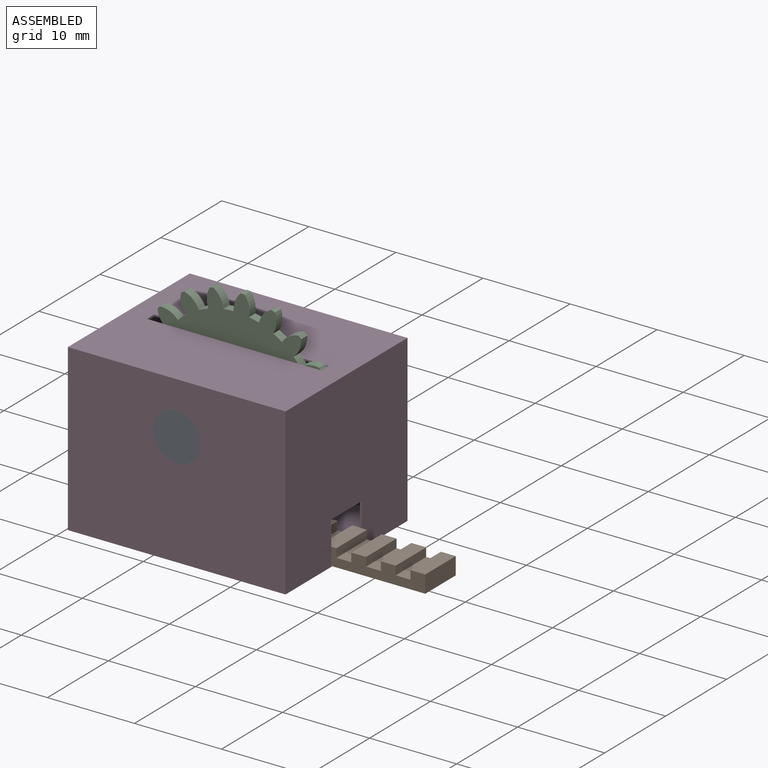
[diagram: assembled view]
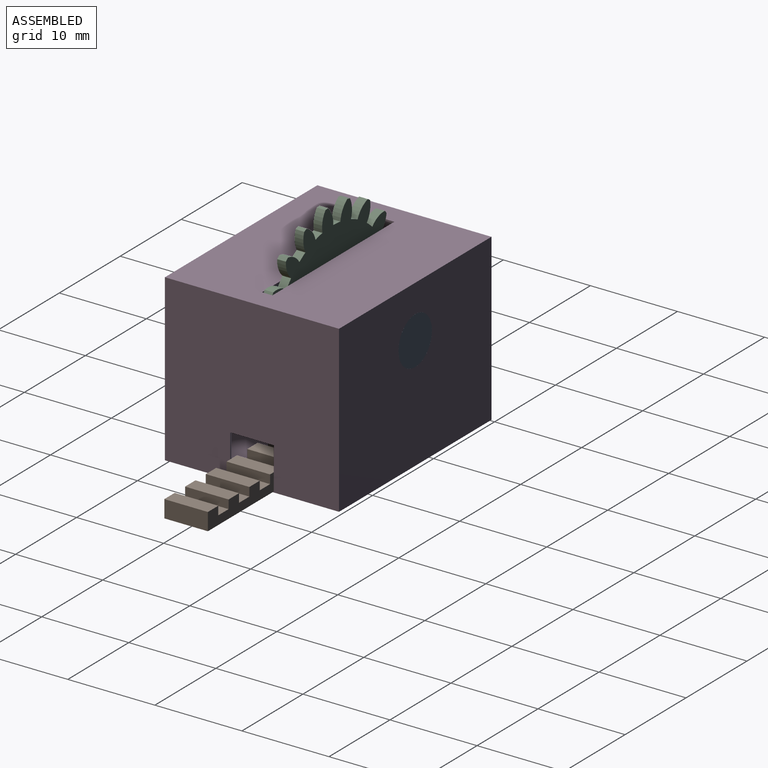
[diagram: assembled view, second angle]
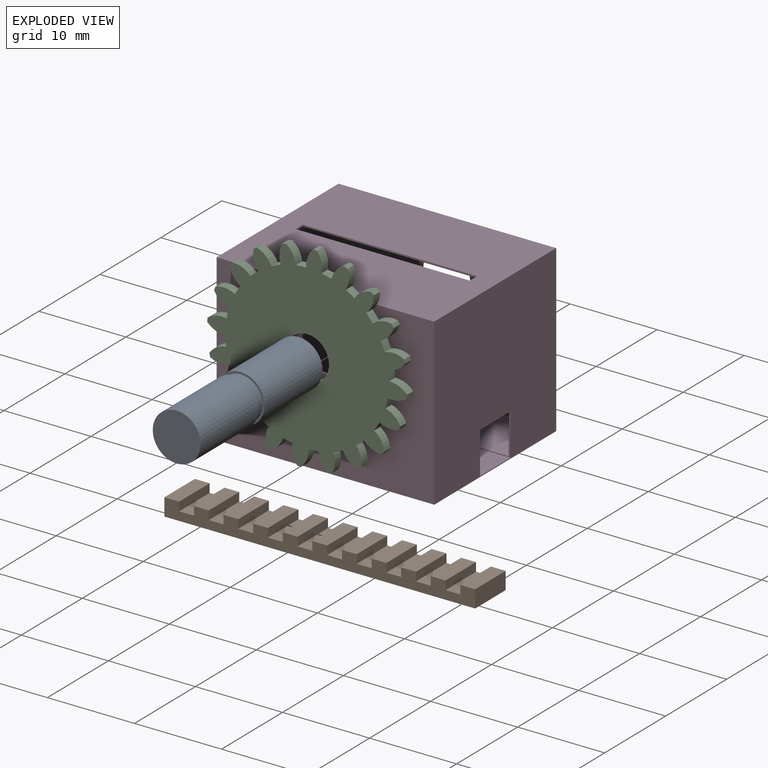
[diagram: exploded view]
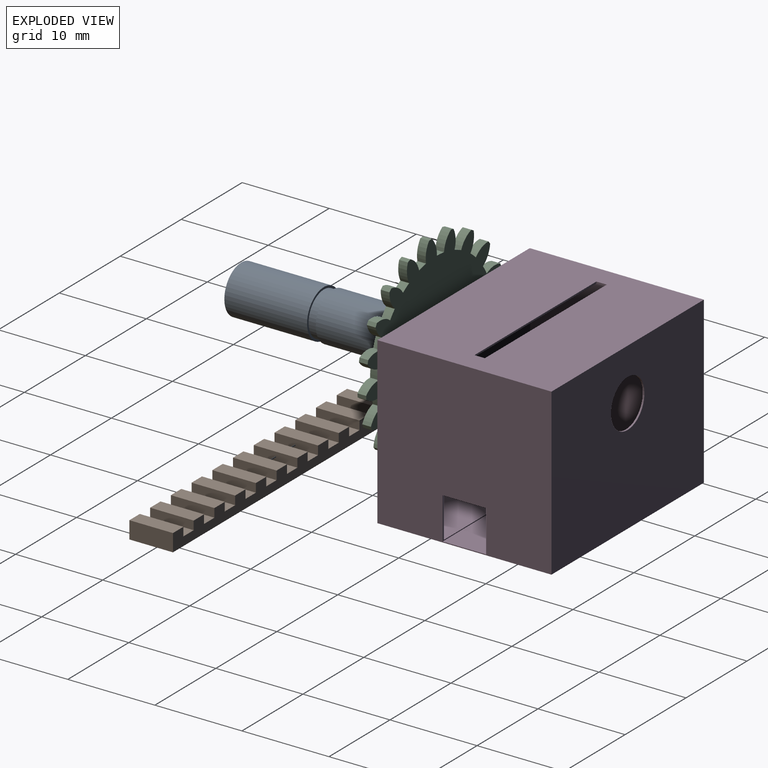
[diagram: exploded view, second angle]
ASSEMBLY  parts=4 mates=3
PART A: 7 faces, bbox 5.5x20x5.5 mm
  f0: cylinder r=2.5mm len=5mm, axis (0,1,0), area 15.7mm2, adj f3,f6
  f1: cylinder r=2.75mm len=9.5mm, axis (0,-1,0), area 164.1mm2, adj f2,f3
  f2: plane 5.5x5.5mm, normal (0,1,0), area 23.8mm2, adj f1
  f3: plane 5.5x5.5mm, normal (0,-1,0), area 4.1mm2, adj f0,f1
  f4: cylinder r=2.75mm len=9.5mm, axis (0,1,0), area 164.1mm2, adj f5,f6
  f5: plane 5.5x5.5mm, normal (0,-1,0), area 23.8mm2, adj f4
  f6: plane 5.5x5.5mm, normal (0,1,0), area 4.1mm2, adj f0,f4
PART B: 46 faces, bbox 35.7x5x2 mm
  f0: plane 5x1.7mm, normal (0,0,1), area 8.5mm2, adj f3,f11,f18,f43
  f1: plane 5x1.7mm, normal (0,0,1), area 8.5mm2, adj f3,f11,f40,f45
  f2: plane 5x1.7mm, normal (0,0,1), area 8.5mm2, adj f3,f11,f37,f42
  f3: plane 35.7x2mm, normal (0,1,0), area 54.4mm2, adj f0,f1,f2,f4,f5,f6,f7,f8
  f4: plane 5x1.7mm, normal (0,0,1), area 8.5mm2, adj f3,f11,f15,f35
  f5: plane 5x1.7mm, normal (0,0,1), area 8.5mm2, adj f3,f11,f31,f34
  f6: plane 5x1.7mm, normal (0,0,1), area 8.5mm2, adj f3,f11,f28,f33
  f7: plane 5x1.7mm, normal (0,0,1), area 8.5mm2, adj f3,f11,f25,f30
  f8: plane 5x1.7mm, normal (0,0,1), area 8.5mm2, adj f3,f11,f22,f27
  f9: plane 5x1.7mm, normal (0,0,1), area 8.5mm2, adj f3,f11,f19,f24
  f10: plane 5x1.7mm, normal (0,0,1), area 8.5mm2, adj f3,f11,f16,f21
  f11: plane 35.7x2mm, normal (0,-1,0), area 54.4mm2, adj f0,f1,f2,f4,f5,f6,f7,f8
  f12: plane 35.7x5mm, normal (0,0,-1), area 178.5mm2, adj f3,f11,f13,f15
  f13: plane 5x2mm, normal (1,0,0), area 10mm2, adj f3,f11,f12,f14
  f14: plane 5x1.7mm, normal (0,0,1), area 8.5mm2, adj f3,f11,f13,f39
  f15: plane 5x2mm, normal (-1,0,0), area 10mm2, adj f3,f4,f11,f12
  f16: plane 5x1mm, normal (1,0,0), area 5mm2, adj f3,f10,f11,f17
  f17: plane 5x1.7mm, normal (0,0,1), area 8.5mm2, adj f3,f11,f16,f18
  f18: plane 5x1mm, normal (-1,0,0), area 5mm2, adj f0,f3,f11,f17
  f19: plane 5x1mm, normal (1,0,0), area 5mm2, adj f3,f9,f11,f20
  f20: plane 5x1.7mm, normal (0,0,1), area 8.5mm2, adj f3,f11,f19,f21
  f21: plane 5x1mm, normal (-1,0,0), area 5mm2, adj f3,f10,f11,f20
  f22: plane 5x1mm, normal (1,0,0), area 5mm2, adj f3,f8,f11,f23
  f23: plane 5x1.7mm, normal (0,0,1), area 8.5mm2, adj f3,f11,f22,f24
  f24: plane 5x1mm, normal (-1,0,0), area 5mm2, adj f3,f9,f11,f23
  f25: plane 5x1mm, normal (1,0,0), area 5mm2, adj f3,f7,f11,f26
  f26: plane 5x1.7mm, normal (0,0,1), area 8.5mm2, adj f3,f11,f25,f27
  f27: plane 5x1mm, normal (-1,0,0), area 5mm2, adj f3,f8,f11,f26
  f28: plane 5x1mm, normal (1,0,0), area 5mm2, adj f3,f6,f11,f29
  f29: plane 5x1.7mm, normal (0,0,1), area 8.5mm2, adj f3,f11,f28,f30
  f30: plane 5x1mm, normal (-1,0,0), area 5mm2, adj f3,f7,f11,f29
  f31: plane 5x1mm, normal (1,0,0), area 5mm2, adj f3,f5,f11,f32
  f32: plane 5x1.7mm, normal (0,0,1), area 8.5mm2, adj f3,f11,f31,f33
  f33: plane 5x1mm, normal (-1,0,0), area 5mm2, adj f3,f6,f11,f32
  f34: plane 5x1mm, normal (-1,0,0), area 5mm2, adj f3,f5,f11,f36
  f35: plane 5x1mm, normal (1,0,0), area 5mm2, adj f3,f4,f11,f36
  f36: plane 5x1.7mm, normal (0,0,1), area 8.5mm2, adj f3,f11,f34,f35
  f37: plane 5x1mm, normal (1,0,0), area 5mm2, adj f2,f3,f11,f38
  f38: plane 5x1.7mm, normal (0,0,1), area 8.5mm2, adj f3,f11,f37,f39
  f39: plane 5x1mm, normal (-1,0,0), area 5mm2, adj f3,f11,f14,f38
  f40: plane 5x1mm, normal (1,0,0), area 5mm2, adj f1,f3,f11,f41
  f41: plane 5x1.7mm, normal (0,0,1), area 8.5mm2, adj f3,f11,f40,f42
  f42: plane 5x1mm, normal (-1,0,0), area 5mm2, adj f2,f3,f11,f41
  f43: plane 5x1mm, normal (1,0,0), area 5mm2, adj f0,f3,f11,f44
  f44: plane 5x1.7mm, normal (0,0,1), area 8.5mm2, adj f3,f11,f43,f45
  f45: plane 5x1mm, normal (-1,0,0), area 5mm2, adj f1,f3,f11,f44
PART C: 83 faces, bbox 23x23x1 mm
  f0: cylinder r=2.61mm len=2.18mm, axis (0,0,-1), area 2.3mm2, adj f1,f79,f81,f82
  f1: cylinder r=9.41mm len=1.14mm, axis (0,0,-1), area 1.2mm2, adj f0,f2,f81,f82
  f2: cylinder r=2.61mm len=1.71mm, axis (0,0,-1), area 2.3mm2, adj f1,f3,f81,f82
  f3: plane 1x0.41mm, normal (-0.38,0.92,0), area 0.4mm2, adj f2,f4,f81,f82
  f4: cylinder r=2.61mm len=2.23mm, axis (0,0,-1), area 2.3mm2, adj f3,f5,f81,f82
  f5: cylinder r=9.41mm len=1mm, axis (0,0,-1), area 1.2mm2, adj f4,f6,f81,f82
  f6: cylinder r=2.61mm len=1.89mm, axis (0,0,-1), area 2.3mm2, adj f5,f7,f81,f82
  f7: plane 1x0.34mm, normal (-0.65,0.76,0), area 0.4mm2, adj f6,f8,f81,f82
  f8: cylinder r=2.61mm len=2.06mm, axis (0,0,-1), area 2.3mm2, adj f7,f9,f81,f82
  f9: cylinder r=9.41mm len=1mm, axis (0,0,-1), area 1.2mm2, adj f8,f10,f81,f82
  f10: cylinder r=2.61mm len=2.17mm, axis (0,0,-1), area 2.3mm2, adj f9,f11,f81,f82
  f11: plane 1x0.38mm, normal (-0.85,0.52,0), area 0.4mm2, adj f10,f12,f81,f82
  f12: cylinder r=2.61mm len=1.68mm, axis (0,0,-1), area 2.3mm2, adj f11,f13,f81,f82
  f13: cylinder r=9.41mm len=1.08mm, axis (0,0,-1), area 1.2mm2, adj f12,f14,f81,f82
  f14: cylinder r=2.61mm len=2.23mm, axis (0,0,-1), area 2.3mm2, adj f13,f15,f81,f82
  f15: plane 1x0.43mm, normal (-0.97,0.23,0), area 0.4mm2, adj f14,f16,f81,f82
  f16: cylinder r=2.61mm len=1.92mm, axis (0,0,-1), area 2.3mm2, adj f15,f17,f81,f82
  f17: cylinder r=9.41mm len=1.17mm, axis (0,0,-1), area 1.2mm2, adj f16,f18,f81,f82
  f18: cylinder r=2.61mm len=2.07mm, axis (0,0,-1), area 2.3mm2, adj f17,f19,f81,f82
  f19: plane 1x0.44mm, normal (-1,-0.08,0), area 0.4mm2, adj f18,f20,f81,f82
  f20: cylinder r=2.61mm len=2.18mm, axis (0,0,-1), area 2.3mm2, adj f19,f21,f81,f82
  f21: cylinder r=9.41mm len=1.14mm, axis (0,0,-1), area 1.2mm2, adj f20,f22,f81,f82
  f22: cylinder r=2.61mm len=1.71mm, axis (0,0,-1), area 2.3mm2, adj f21,f23,f81,f82
  f23: plane 1x0.41mm, normal (-0.92,-0.38,0), area 0.4mm2, adj f22,f24,f81,f82
  f24: cylinder r=2.61mm len=2.23mm, axis (0,0,-1), area 2.3mm2, adj f23,f25,f81,f82
  f25: cylinder r=9.41mm len=1mm, axis (0,0,-1), area 1.2mm2, adj f24,f26,f81,f82
  f26: cylinder r=2.61mm len=1.89mm, axis (0,0,-1), area 2.3mm2, adj f25,f27,f81,f82
  f27: plane 1x0.34mm, normal (-0.76,-0.65,0), area 0.4mm2, adj f26,f28,f81,f82
  f28: cylinder r=2.61mm len=2.06mm, axis (0,0,-1), area 2.3mm2, adj f27,f29,f81,f82
  f29: cylinder r=9.41mm len=1mm, axis (0,0,-1), area 1.2mm2, adj f28,f30,f81,f82
  f30: cylinder r=2.61mm len=2.17mm, axis (0,0,-1), area 2.3mm2, adj f29,f31,f81,f82
  f31: plane 1x0.38mm, normal (-0.52,-0.85,0), area 0.4mm2, adj f30,f32,f81,f82
  f32: cylinder r=2.61mm len=1.68mm, axis (0,0,-1), area 2.3mm2, adj f31,f33,f81,f82
  f33: cylinder r=9.41mm len=1.08mm, axis (0,0,-1), area 1.2mm2, adj f32,f34,f81,f82
  f34: cylinder r=2.61mm len=2.23mm, axis (0,0,-1), area 2.3mm2, adj f33,f35,f81,f82
  f35: plane 1x0.43mm, normal (-0.23,-0.97,0), area 0.4mm2, adj f34,f36,f81,f82
  f36: cylinder r=2.61mm len=1.92mm, axis (0,0,-1), area 2.3mm2, adj f35,f37,f81,f82
  f37: cylinder r=9.41mm len=1.17mm, axis (0,0,-1), area 1.2mm2, adj f36,f38,f81,f82
  f38: cylinder r=2.61mm len=2.07mm, axis (0,0,-1), area 2.3mm2, adj f37,f39,f81,f82
  f39: plane 1x0.44mm, normal (0.08,-1,0), area 0.4mm2, adj f38,f40,f81,f82
  f40: cylinder r=2.61mm len=2.18mm, axis (0,0,-1), area 2.3mm2, adj f39,f41,f81,f82
  f41: cylinder r=9.41mm len=1.14mm, axis (0,0,-1), area 1.2mm2, adj f40,f42,f81,f82
  f42: cylinder r=2.61mm len=1.71mm, axis (0,0,-1), area 2.3mm2, adj f41,f43,f81,f82
  f43: plane 1x0.41mm, normal (0.38,-0.92,0), area 0.4mm2, adj f42,f44,f81,f82
  f44: cylinder r=2.61mm len=2.23mm, axis (0,0,-1), area 2.3mm2, adj f43,f45,f81,f82
  f45: cylinder r=9.41mm len=1mm, axis (0,0,-1), area 1.2mm2, adj f44,f46,f81,f82
  f46: cylinder r=2.61mm len=1.89mm, axis (0,0,-1), area 2.3mm2, adj f45,f47,f81,f82
  f47: plane 1x0.34mm, normal (0.65,-0.76,0), area 0.4mm2, adj f46,f48,f81,f82
  f48: cylinder r=2.61mm len=2.06mm, axis (0,0,-1), area 2.3mm2, adj f47,f49,f81,f82
  f49: cylinder r=9.41mm len=1mm, axis (0,0,-1), area 1.2mm2, adj f48,f50,f81,f82
  f50: cylinder r=2.61mm len=2.17mm, axis (0,0,-1), area 2.3mm2, adj f49,f51,f81,f82
  f51: plane 1x0.38mm, normal (0.85,-0.52,0), area 0.4mm2, adj f50,f52,f81,f82
  f52: cylinder r=2.61mm len=1.68mm, axis (0,0,-1), area 2.3mm2, adj f51,f53,f81,f82
  f53: cylinder r=9.41mm len=1.08mm, axis (0,0,-1), area 1.2mm2, adj f52,f54,f81,f82
  f54: cylinder r=2.61mm len=2.23mm, axis (0,0,-1), area 2.3mm2, adj f53,f55,f81,f82
  f55: plane 1x0.43mm, normal (0.97,-0.23,0), area 0.4mm2, adj f54,f56,f81,f82
  f56: cylinder r=2.61mm len=1.92mm, axis (0,0,-1), area 2.3mm2, adj f55,f57,f81,f82
  f57: cylinder r=9.41mm len=1.17mm, axis (0,0,-1), area 1.2mm2, adj f56,f58,f81,f82
  f58: cylinder r=2.61mm len=2.07mm, axis (0,0,-1), area 2.3mm2, adj f57,f59,f81,f82
  f59: plane 1x0.44mm, normal (1,0.08,0), area 0.4mm2, adj f58,f60,f81,f82
  f60: cylinder r=2.61mm len=2.18mm, axis (0,0,-1), area 2.3mm2, adj f59,f61,f81,f82
  f61: cylinder r=9.41mm len=1.14mm, axis (0,0,-1), area 1.2mm2, adj f60,f62,f81,f82
  f62: cylinder r=2.61mm len=1.71mm, axis (0,0,-1), area 2.3mm2, adj f61,f63,f81,f82
  f63: plane 1x0.41mm, normal (0.92,0.38,0), area 0.4mm2, adj f62,f64,f81,f82
  f64: cylinder r=2.61mm len=2.23mm, axis (0,0,-1), area 2.3mm2, adj f63,f65,f81,f82
  f65: cylinder r=9.41mm len=1mm, axis (0,0,-1), area 1.2mm2, adj f64,f66,f81,f82
  f66: cylinder r=2.61mm len=1.89mm, axis (0,0,-1), area 2.3mm2, adj f65,f67,f81,f82
  f67: plane 1x0.34mm, normal (0.76,0.65,0), area 0.4mm2, adj f66,f68,f81,f82
  f68: cylinder r=2.61mm len=2.06mm, axis (0,0,-1), area 2.3mm2, adj f67,f69,f81,f82
  f69: cylinder r=9.41mm len=1mm, axis (0,0,-1), area 1.2mm2, adj f68,f70,f81,f82
  f70: cylinder r=2.61mm len=2.17mm, axis (0,0,-1), area 2.3mm2, adj f69,f71,f81,f82
  f71: plane 1x0.38mm, normal (0.52,0.85,0), area 0.4mm2, adj f70,f72,f81,f82
  f72: cylinder r=2.61mm len=1.68mm, axis (0,0,-1), area 2.3mm2, adj f71,f73,f81,f82
  f73: cylinder r=9.41mm len=1.08mm, axis (0,0,-1), area 1.2mm2, adj f72,f74,f81,f82
  f74: cylinder r=2.61mm len=2.23mm, axis (0,0,-1), area 2.3mm2, adj f73,f75,f81,f82
  f75: plane 1x0.43mm, normal (0.23,0.97,0), area 0.4mm2, adj f74,f76,f81,f82
  f76: cylinder r=2.61mm len=1.92mm, axis (0,0,-1), area 2.3mm2, adj f75,f77,f81,f82
  f77: cylinder r=9.41mm len=1.17mm, axis (0,0,-1), area 1.2mm2, adj f76,f78,f81,f82
  f78: cylinder r=2.61mm len=2.07mm, axis (0,0,-1), area 2.3mm2, adj f77,f79,f81,f82
  f79: plane 1x0.44mm, normal (-0.08,1,0), area 0.4mm2, adj f0,f78,f81,f82
  f80: cylinder r=2.5mm len=5mm, axis (0,0,-1), area 15.7mm2, adj f81,f82
  f81: plane 22.96x22.96mm, normal (0,0,1), area 320mm2, adj f0,f1,f2,f3,f4,f5,f6,f7
  f82: plane 22.96x22.96mm, normal (0,0,-1), area 320mm2, adj f0,f1,f2,f3,f4,f5,f6,f7
PART D: 25 faces, bbox 25x20x19 mm
  f0: plane 24.6x7.3mm, normal (0,0,1), area 179.6mm2, adj f2,f4,f6,f22
  f1: plane 24.6x7.3mm, normal (0,0,1), area 179.6mm2, adj f2,f4,f5,f20
  f2: plane 19.6x18.6mm, normal (-1,0,0), area 341.1mm2, adj f0,f1,f3,f5,f6,f20,f22,f23
  f3: plane 24.6x19.6mm, normal (0,0,-1), area 458.2mm2, adj f2,f4,f5,f6,f15,f16,f17,f18
  f4: plane 19.6x18.6mm, normal (1,0,0), area 341.1mm2, adj f0,f1,f3,f5,f6,f19,f20,f22
  f5: plane 24.6x18.6mm, normal (0,1,0), area 433.8mm2, adj f1,f2,f3,f4,f8
  f6: plane 24.6x18.6mm, normal (0,-1,0), area 433.8mm2, adj f0,f2,f3,f4,f7
  f7: cylinder r=2.75mm len=5.5mm, axis (0,1,0), area 3.5mm2, adj f6,f14
  f8: cylinder r=2.75mm len=5.5mm, axis (0,1,0), area 3.5mm2, adj f5,f13
  f9: plane 25x20mm, normal (0,0,-1), area 500mm2, adj f10,f12,f13,f14
  f10: plane 20x19mm, normal (1,0,0), area 356mm2, adj f9,f11,f13,f14,f20,f21,f22,f23
  f11: plane 25x20mm, normal (0,0,1), area 476mm2, adj f10,f12,f13,f14,f15,f16,f17,f18
  f12: plane 20x19mm, normal (-1,0,0), area 380mm2, adj f9,f11,f13,f14
  f13: plane 25x19mm, normal (0,-1,0), area 451.2mm2, adj f8,f9,f10,f11,f12
  f14: plane 25x19mm, normal (0,1,0), area 451.2mm2, adj f7,f9,f10,f11,f12
  f15: plane 1.2x0.2mm, normal (1,0,0), area 0.2mm2, adj f3,f11,f16,f18
  f16: plane 20x0.2mm, normal (0,1,0), area 4mm2, adj f3,f11,f15,f17
  f17: plane 1.2x0.2mm, normal (-1,0,0), area 0.2mm2, adj f3,f11,f16,f18
  f18: plane 20x0.2mm, normal (0,-1,0), area 4mm2, adj f3,f11,f15,f17
  f19: plane 5x0.1mm, normal (0,0,-1), area 0.5mm2, adj f4,f20,f22,f24
  f20: plane 24.9x4.8mm, normal (0,1,0), area 3.9mm2, adj f1,f2,f4,f10,f19,f21,f23,f24
  f21: plane 24.9x5mm, normal (0,0,1), area 124.5mm2, adj f10,f20,f22,f24
  f22: plane 24.9x4.8mm, normal (0,-1,0), area 3.9mm2, adj f0,f2,f4,f10,f19,f21,f23,f24
  f23: plane 5x0.2mm, normal (0,0,-1), area 1mm2, adj f2,f10,f20,f22
  f24: plane 5x4.8mm, normal (1,0,0), area 24mm2, adj f19,f20,f21,f22
PLACE A t=(3.57,10.89,-0.34)mm fixed
PLACE B t=(26.87,12.89,-13.24)mm
PLACE C rot(axis=(0.05,0.71,-0.71),173.8deg) t=(3.57,10.89,-0.34)mm
PLACE D t=(16.07,20.39,-13.34)mm
MATE fastened D.f7 <-> A.f1  axis (0,1,0) through (3.57,0.49,-0.34)mm
MATE slider D.f24 <-> B.f15  axis (1,0,0) through (-8.83,10.39,-10.84)mm
MATE revolute A.f0 <-> C.f1  axis (0,1,0) through (3.57,10.39,-0.34)mm
